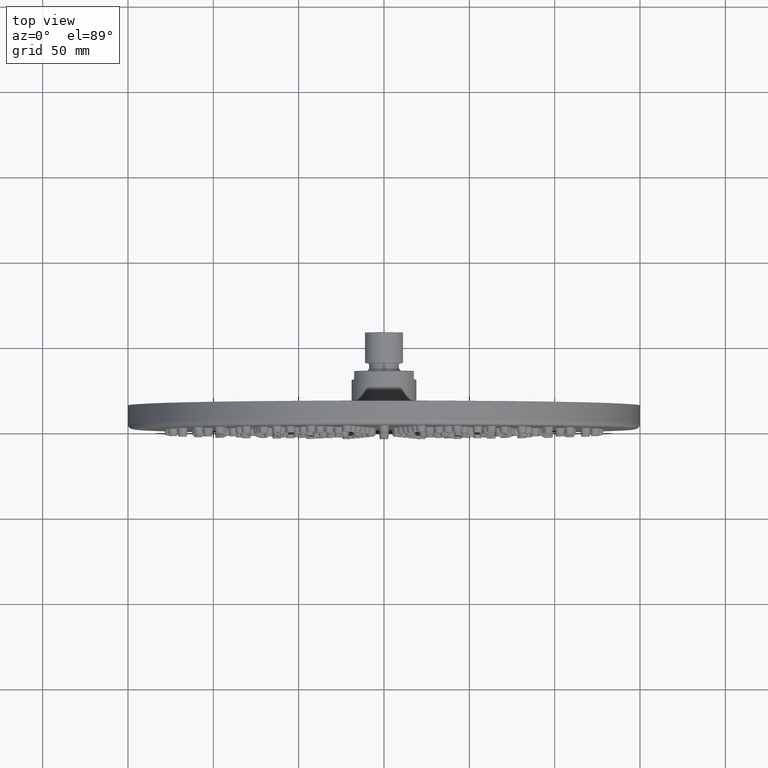
[diagram: clean part render]
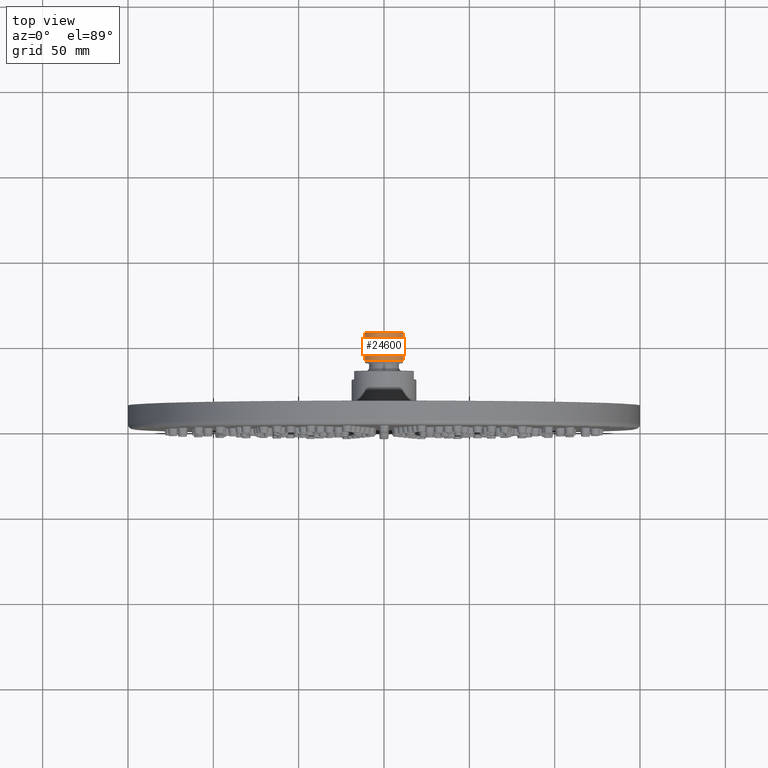
[diagram: same view with one face highlighted and labeled with its STEP entity id]
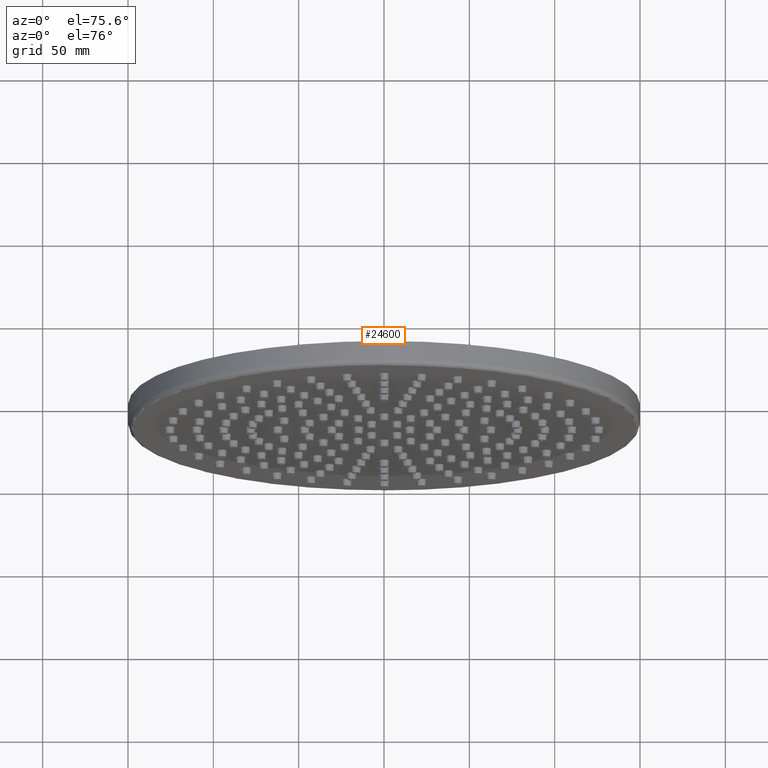
[diagram: same view with one face highlighted and labeled with its STEP entity id]
A machine part, top view. The second image highlights one B-rep face of the part: STEP entity #24600.
A second angle (auxiliary view) of the same face is appended — the face is thin or edge-on in the first view.
In plain terms, the highlighted cylindrical surface (edge-blend (fillet) strip) has radius 11.8 mm, axis along (0, -1, 0).
Its self-contained STEP definition (entity closure, byte-faithful):
#21873=CARTESIAN_POINT('',(-1.11E1,2.98952E1,4.003748243834E0));
#21875=CARTESIAN_POINT('',(0.E0,2.98952E1,0.E0));
#21876=DIRECTION('',(0.E0,-1.E0,0.E0));
#21877=DIRECTION('',(9.406779661017E-1,0.E0,3.393006986300E-1));
#21878=AXIS2_PLACEMENT_3D('',#21875,#21876,#21877);
#21900=DIRECTION('',(0.E0,-1.E0,0.E0));
#21901=VECTOR('',#21900,1.61712E1);
#21902=CARTESIAN_POINT('',(1.11E1,2.98952E1,4.003748243834E0));
#21903=LINE('',#21902,#21901);
#21904=DIRECTION('',(0.E0,1.E0,0.E0));
#21905=VECTOR('',#21904,1.61712E1);
#21906=CARTESIAN_POINT('',(-1.11E1,1.3724E1,4.003748243834E0));
#21907=LINE('',#21906,#21905);
#21971=CARTESIAN_POINT('',(0.E0,1.3724E1,0.E0));
#21972=DIRECTION('',(0.E0,1.E0,0.E0));
#21973=DIRECTION('',(-7.791728327372E-7,0.E0,9.999999999997E-1));
#21974=AXIS2_PLACEMENT_3D('',#21971,#21972,#21973);
#22063=CARTESIAN_POINT('',(-1.11E1,1.3724E1,4.003748243834E0));
#22065=CARTESIAN_POINT('',(0.E0,1.3724E1,0.E0));
#22066=DIRECTION('',(0.E0,1.E0,0.E0));
#22067=DIRECTION('',(-9.406779661017E-1,0.E0,3.393006986300E-1));
#22068=AXIS2_PLACEMENT_3D('',#22065,#22066,#22067);
#24479=CARTESIAN_POINT('',(-9.458955291695E-6,1.3724E1,1.18E1));
#24480=VERTEX_POINT('',#24479);
#24481=CARTESIAN_POINT('',(1.11E1,1.3724E1,4.003748243834E0));
#24482=VERTEX_POINT('',#24481);
#24487=VERTEX_POINT('',#22063);
#24488=VERTEX_POINT('',#21873);
#24491=CARTESIAN_POINT('',(1.11E1,2.98952E1,4.003748243834E0));
#24492=VERTEX_POINT('',#24491);
#24585=CARTESIAN_POINT('',(0.E0,3.2285E1,0.E0));
#24586=DIRECTION('',(0.E0,-1.E0,0.E0));
#24587=DIRECTION('',(-1.E0,0.E0,0.E0));
#24588=AXIS2_PLACEMENT_3D('',#24585,#24586,#24587);
#24589=CYLINDRICAL_SURFACE('',#24588,1.18E1);
#24590=ORIENTED_EDGE('',*,*,#24575,.F.);
#24592=ORIENTED_EDGE('',*,*,#24591,.T.);
#24594=ORIENTED_EDGE('',*,*,#24593,.F.);
#24596=ORIENTED_EDGE('',*,*,#24595,.F.);
#24597=ORIENTED_EDGE('',*,*,#24558,.T.);
#24598=EDGE_LOOP('',(#24590,#24592,#24594,#24596,#24597));
#24599=FACE_OUTER_BOUND('',#24598,.F.);
#24600=ADVANCED_FACE('',(#24599),#24589,.T.);
#21879=CIRCLE('',#21878,1.18E1);
#21975=CIRCLE('',#21974,1.18E1);
#22069=CIRCLE('',#22068,1.18E1);
#24558=EDGE_CURVE('',#24487,#24488,#21907,.T.);
#24575=EDGE_CURVE('',#24492,#24488,#21879,.T.);
#24591=EDGE_CURVE('',#24492,#24482,#21903,.T.);
#24593=EDGE_CURVE('',#24480,#24482,#21975,.T.);
#24595=EDGE_CURVE('',#24487,#24480,#22069,.T.);